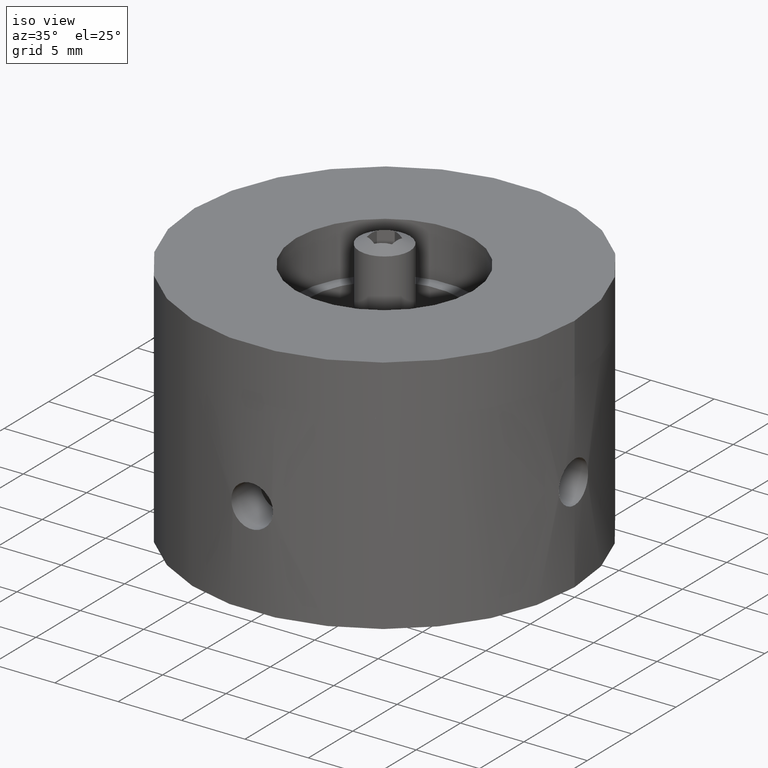
[diagram: clean part render]
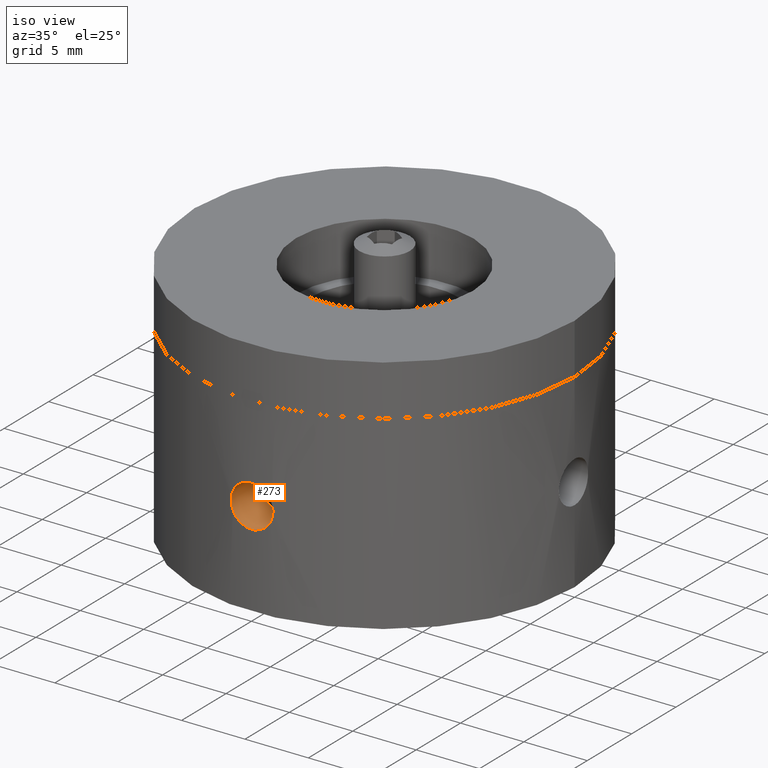
[diagram: same view with one face highlighted and labeled with its STEP entity id]
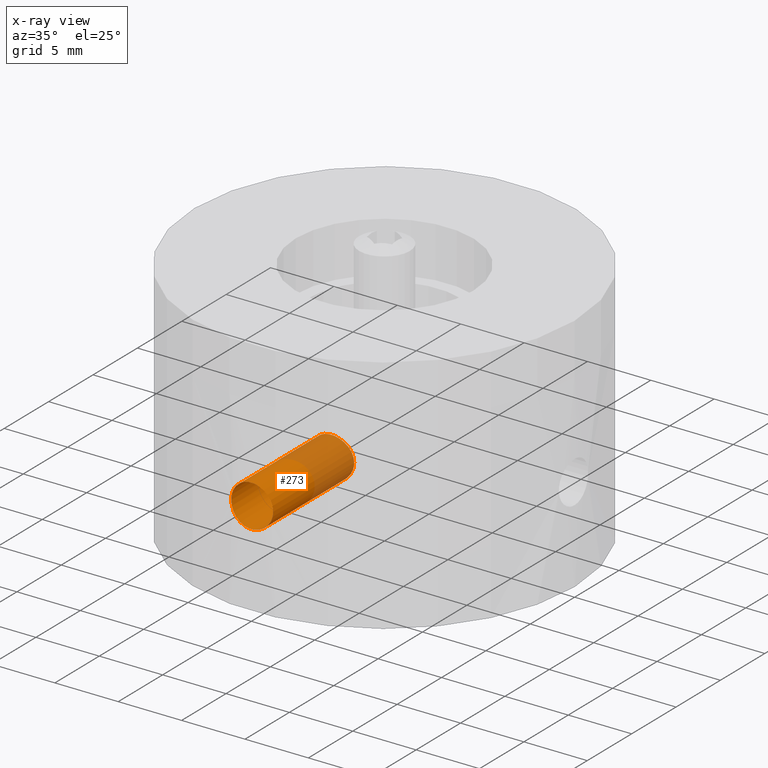
[diagram: x-ray of the same camera — body ghosted, the highlighted face saturated]
A machine part, iso view. The second image highlights one B-rep face of the part: STEP entity #273.
The next image is the same camera in x-ray: the body ghosted, the highlighted face saturated — about 38% of this face is hidden behind the body in this view.
In plain terms, the highlighted cylindrical surface (bore or boss wall) has radius 1.65 mm, axis along (-0, 1, -0).
Its self-contained STEP definition (entity closure, byte-faithful):
#273 = ADVANCED_FACE( '', ( #313, #314 ), #315, .F. );
#313 = FACE_OUTER_BOUND( '', #374, .T. );
#314 = FACE_OUTER_BOUND( '', #375, .T. );
#315 = CYLINDRICAL_SURFACE( '', #376, 1.65000000000000 );
#374 = EDGE_LOOP( '', ( #440 ) );
#375 = EDGE_LOOP( '', ( #441 ) );
#376 = AXIS2_PLACEMENT_3D( '', #442, #443, #444 );
#440 = ORIENTED_EDGE( '', *, *, #551, .T. );
#441 = ORIENTED_EDGE( '', *, *, #555, .F. );
#442 = CARTESIAN_POINT( '', ( 0.000000000000000, -12.0000000000000, -7.50000000000000 ) );
#443 = DIRECTION( '', ( -0.000000000000000, 1.00000000000000, -0.000000000000000 ) );
#444 = DIRECTION( '', ( 1.00000000000000, 0.000000000000000, 0.000000000000000 ) );
#551 = EDGE_CURVE( '', #585, #585, #586, .T. );
#555 = EDGE_CURVE( '', #593, #593, #594, .T. );
#585 = VERTEX_POINT( '', #645 );
#586 = B_SPLINE_CURVE_WITH_KNOTS( '', 3, ( #646, #647, #648, #649, #650, #651, #652, #653, #654, #655, #656, #657, #658, #659, #660, #661, #662, #663, #664, #665, #666, #667, #668, #669, #670, #671, #672, #673, #674, #675, #676, #677, #678, #679, #680, #681, #682, #683, #684, #685, #686, #687, #688, #689, #690, #691, #692, #693, #694, #695, #696, #697, #698, #699 ), .UNSPECIFIED., .T., .F., ( 2, 2, 2, 2, 2, 2, 2, 2, 2, 2, 2, 2, 2, 2, 2, 2, 2, 2, 2, 2, 2, 2, 2, 2, 2, 2, 2, 2, 2 ), ( -0.000645243045229336, 0.000000000000000, 0.000322621522614668, 0.000645243045229336, 0.000967864567844005, 0.00129048609045867, 0.00193572913568801, 0.00258097218091735, 0.00290359370353201, 0.00322621522614668, 0.00354883674876135, 0.00387145827137602, 0.00419407979399069, 0.00451670131660535, 0.00483932283922002, 0.00516194436183469, 0.00580718740706402, 0.00645243045229336, 0.00677505197490803, 0.00709767349752269, 0.00742029502013736, 0.00774291654275203, 0.00806553806536670, 0.00838815958798137, 0.00871078111059603, 0.00903340263321070, 0.00967864567844004, 0.0103238887236694, 0.0106465102462840 ), .UNSPECIFIED. );
#593 = VERTEX_POINT( '', #759 );
#594 = B_SPLINE_CURVE_WITH_KNOTS( '', 3, ( #760, #761, #762, #763, #764, #765, #766, #767, #768, #769, #770, #771, #772, #773, #774, #775, #776, #777, #778, #779, #780, #781, #782, #783, #784, #785, #786, #787, #788, #789, #790, #791, #792, #793, #794, #795, #796, #797, #798, #799, #800, #801, #802, #803, #804, #805, #806, #807, #808, #809, #810, #811, #812, #813 ), .UNSPECIFIED., .T., .F., ( 2, 2, 2, 2, 2, 2, 2, 2, 2, 2, 2, 2, 2, 2, 2, 2, 2, 2, 2, 2, 2, 2, 2, 2, 2, 2, 2, 2, 2 ), ( -0.000323935350065545, 0.000000000000000, 0.000323935350065543, 0.000647870700131086, 0.000971806050196629, 0.00129574140026217, 0.00194361210039326, 0.00259148280052434, 0.00291541815058989, 0.00323935350065543, 0.00388722420078652, 0.00421115955085206, 0.00453509490091760, 0.00485903025098314, 0.00518296560104869, 0.00583083630117977, 0.00615477165124532, 0.00647870700131086, 0.00680264235137640, 0.00712657770144195, 0.00745051305150749, 0.00777444840157303, 0.00809838375163858, 0.00842231910170412, 0.00907018980183521, 0.00971806050196629, 0.0100419958520318, 0.0103659312020974, 0.0106898665521629 ), .UNSPECIFIED. );
#645 = CARTESIAN_POINT( '', ( 1.65000000000000, -14.9089738077441, -7.50000000000000 ) );
#646 = CARTESIAN_POINT( '', ( 1.65000000000000, -14.9089738077441, -7.71819070415725 ) );
#647 = CARTESIAN_POINT( '', ( 1.65000000000000, -14.9089738077441, -7.39090464792137 ) );
#648 = CARTESIAN_POINT( '', ( 1.63928684178197, -14.9101704889318, -7.28364897918889 ) );
#649 = CARTESIAN_POINT( '', ( 1.59732615329414, -14.9147240845634, -7.07266140608641 ) );
#650 = CARTESIAN_POINT( '', ( 1.56556334465662, -14.9181347766517, -6.96782996341511 ) );
#651 = CARTESIAN_POINT( '', ( 1.48271649969033, -14.9265965840181, -6.76805374820467 ) );
#652 = CARTESIAN_POINT( '', ( 1.43203126078904, -14.9316074407352, -6.67331549730807 ) );
#653 = CARTESIAN_POINT( '', ( 1.31229737076662, -14.9426065298787, -6.49401967735593 ) );
#654 = CARTESIAN_POINT( '', ( 1.24265989885390, -14.9486325684795, -6.40919195513248 ) );
#655 = CARTESIAN_POINT( '', ( 1.01450024180300, -14.9664313189846, -6.18107903221962 ) );
#656 = CARTESIAN_POINT( '', ( 0.830547892981252, -14.9783064416020, -6.05817135265818 ) );
#657 = CARTESIAN_POINT( '', ( 0.433541208675946, -14.9950497058679, -5.89353752885075 ) );
#658 = CARTESIAN_POINT( '', ( 0.216298844694141, -14.9999869469486, -5.85011866412176 ) );
#659 = CARTESIAN_POINT( '', ( -0.106788754905531, -15.0000064853831, -5.84994104196257 ) );
#660 = CARTESIAN_POINT( '', ( -0.216192192657116, -14.9988155505170, -5.86066893428715 ) );
#661 = CARTESIAN_POINT( '', ( -0.427869468074369, -14.9942700622901, -5.90279208445898 ) );
#662 = CARTESIAN_POINT( '', ( -0.530762121592197, -14.9909404587848, -5.93395819817668 ) );
#663 = CARTESIAN_POINT( '', ( -0.730627897140900, -14.9825293974171, -6.01663280651939 ) );
#664 = CARTESIAN_POINT( '', ( -0.827144611714831, -14.9774445782397, -6.06826023390853 ) );
#665 = CARTESIAN_POINT( '', ( -1.00585537081090, -14.9665049118336, -6.18763498236680 ) );
#666 = CARTESIAN_POINT( '', ( -1.08920300456758, -14.9606018601566, -6.25581464364733 ) );
#667 = CARTESIAN_POINT( '', ( -1.24328230154476, -14.9485858970656, -6.40976630725929 ) );
#668 = CARTESIAN_POINT( '', ( -1.31149950016194, -14.9426761324245, -6.49301798372322 ) );
#669 = CARTESIAN_POINT( '', ( -1.43101258109833, -14.9317046558721, -6.67159990779325 ) );
#670 = CARTESIAN_POINT( '', ( -1.48272402148114, -14.9265958363253, -6.76806861106908 ) );
#671 = CARTESIAN_POINT( '', ( -1.56557048971486, -14.9181340262989, -6.96785046865236 ) );
#672 = CARTESIAN_POINT( '', ( -1.59681990520082, -14.9147785383513, -7.07069453413408 ) );
#673 = CARTESIAN_POINT( '', ( -1.63912314971133, -14.9101887297844, -7.28225636002788 ) );
#674 = CARTESIAN_POINT( '', ( -1.64995997310042, -14.9089782375849, -7.39167101728523 ) );
#675 = CARTESIAN_POINT( '', ( -1.65007971398281, -14.9089649856706, -7.71482379481936 ) );
#676 = CARTESIAN_POINT( '', ( -1.60686687133185, -14.9139129584025, -7.93206616723543 ) );
#677 = CARTESIAN_POINT( '', ( -1.44254524932349, -14.9307027321772, -8.32931629593755 ) );
#678 = CARTESIAN_POINT( '', ( -1.31980835899336, -14.9426014862893, -8.51335072638096 ) );
#679 = CARTESIAN_POINT( '', ( -1.09186535066610, -14.9604023467501, -8.74173205877765 ) );
#680 = CARTESIAN_POINT( '', ( -1.00708575851452, -14.9664235129812, -8.81144746369314 ) );
#681 = CARTESIAN_POINT( '', ( -0.827928177747642, -14.9774026262036, -8.93131097512783 ) );
#682 = CARTESIAN_POINT( '', ( -0.733250546335793, -14.9824006355741, -8.98207076984429 ) );
#683 = CARTESIAN_POINT( '', ( -0.533577180011314, -14.9908398884627, -9.06508323213169 ) );
#684 = CARTESIAN_POINT( '', ( -0.428756658834457, -14.9942421080848, -9.09694561597872 ) );
#685 = CARTESIAN_POINT( '', ( -0.217820659634048, -14.9987893787663, -9.13909174030166 ) );
#686 = CARTESIAN_POINT( '', ( -0.110597130466666, -14.9999887080203, -9.14989734559534 ) );
#687 = CARTESIAN_POINT( '', ( 0.107512620617929, -15.0000111334096, -9.15010121285873 ) );
#688 = CARTESIAN_POINT( '', ( 0.214877261540442, -14.9988321430700, -9.13948064143589 ) );
#689 = CARTESIAN_POINT( '', ( 0.425901546351155, -14.9943237848972, -9.09770988730303 ) );
#690 = CARTESIAN_POINT( '', ( 0.530732167608159, -14.9909416142419, -9.06605298448722 ) );
#691 = CARTESIAN_POINT( '', ( 0.730626386675595, -14.9825295660792, -8.98336902591660 ) );
#692 = CARTESIAN_POINT( '', ( 0.825415481249328, -14.9775420046777, -8.93276252001027 ) );
#693 = CARTESIAN_POINT( '', ( 1.00480515136419, -14.9665774920775, -8.81319677246946 ) );
#694 = CARTESIAN_POINT( '', ( 1.08970190551822, -14.9605607430210, -8.74363065681718 ) );
#695 = CARTESIAN_POINT( '', ( 1.31803293623761, -14.9427608270037, -8.51565692674996 ) );
#696 = CARTESIAN_POINT( '', ( 1.44109376200985, -14.9308447400876, -8.33182209063996 ) );
#697 = CARTESIAN_POINT( '', ( 1.60607794737681, -14.9139997824345, -7.93496304248781 ) );
#698 = CARTESIAN_POINT( '', ( 1.65000000000000, -14.9089738077441, -7.71819070415725 ) );
#699 = CARTESIAN_POINT( '', ( 1.65000000000000, -14.9089738077441, -7.39090464792137 ) );
#759 = CARTESIAN_POINT( '', ( 1.65000000000000, -5.76866535690882, -7.50000000000000 ) );
#760 = CARTESIAN_POINT( '', ( 1.65000000000000, -5.76866535690882, -7.60957687172956 ) );
#761 = CARTESIAN_POINT( '', ( 1.65000000000000, -5.76866535690882, -7.39042312827044 ) );
#762 = CARTESIAN_POINT( '', ( 1.63919389393257, -5.77178692553713, -7.28278867713167 ) );
#763 = CARTESIAN_POINT( '', ( 1.59695842463832, -5.78361519515985, -7.07120964252361 ) );
#764 = CARTESIAN_POINT( '', ( 1.56498242243479, -5.79246668721539, -6.96614154215468 ) );
#765 = CARTESIAN_POINT( '', ( 1.48199675075463, -5.81425196700166, -6.76661029029883 ) );
#766 = CARTESIAN_POINT( '', ( 1.43129370083876, -5.82710716480738, -6.67205947712033 ) );
#767 = CARTESIAN_POINT( '', ( 1.31159239112937, -5.85521177821450, -6.49311740157130 ) );
#768 = CARTESIAN_POINT( '', ( 1.24230218743372, -5.87048905045125, -6.40883309233159 ) );
#769 = CARTESIAN_POINT( '', ( 1.01518734328448, -5.91550676810682, -6.18176844249272 ) );
#770 = CARTESIAN_POINT( '', ( 0.831967661642739, -5.94538560599344, -6.05900352545720 ) );
#771 = CARTESIAN_POINT( '', ( 0.435298811500737, -5.98751159820833, -5.89402491477292 ) );
#772 = CARTESIAN_POINT( '', ( 0.217458792416847, -5.99996194295814, -5.85013838926912 ) );
#773 = CARTESIAN_POINT( '', ( -0.107150502404167, -6.00001889002617, -5.84993130898279 ) );
#774 = CARTESIAN_POINT( '', ( -0.217085237680211, -5.99701162357613, -5.86077335270232 ) );
#775 = CARTESIAN_POINT( '', ( -0.429139169098669, -5.98557549340673, -5.90311879741329 ) );
#776 = CARTESIAN_POINT( '', ( -0.532270186936321, -5.97719397143362, -5.93444404429814 ) );
#777 = CARTESIAN_POINT( '', ( -0.832965771441648, -5.94531793260722, -6.05924463112375 ) );
#778 = CARTESIAN_POINT( '', ( -1.01424259936861, -5.91569984907431, -6.18076743341767 ) );
#779 = CARTESIAN_POINT( '', ( -1.24309870350945, -5.87032825334419, -6.40965772937590 ) );
#780 = CARTESIAN_POINT( '', ( -1.31099505183364, -5.85534412466293, -6.49237842394233 ) );
#781 = CARTESIAN_POINT( '', ( -1.43043473203242, -5.82731664847143, -6.67062327988749 ) );
#782 = CARTESIAN_POINT( '', ( -1.48228092935192, -5.81417841894113, -6.76723227550747 ) );
#783 = CARTESIAN_POINT( '', ( -1.56497552760715, -5.79246743959704, -6.96618646554336 ) );
#784 = CARTESIAN_POINT( '', ( -1.59641696368705, -5.78376555364899, -7.06904739489962 ) );
#785 = CARTESIAN_POINT( '', ( -1.63909713664893, -5.77181528447971, -7.28176195010981 ) );
#786 = CARTESIAN_POINT( '', ( -1.64995316210289, -5.76867875385901, -7.39129225509596 ) );
#787 = CARTESIAN_POINT( '', ( -1.65009321330336, -5.76863869529379, -7.71527570961920 ) );
#788 = CARTESIAN_POINT( '', ( -1.60655563384624, -5.78154398363783, -7.93337702513394 ) );
#789 = CARTESIAN_POINT( '', ( -1.48283844117316, -5.81403544168976, -8.23162443918887 ) );
#790 = CARTESIAN_POINT( '', ( -1.43115085401429, -5.82714196640622, -8.32817870501136 ) );
#791 = CARTESIAN_POINT( '', ( -1.31150132285195, -5.85523189495992, -8.50699404890879 ) );
#792 = CARTESIAN_POINT( '', ( -1.24360763407258, -5.87021724312962, -8.58973498337169 ) );
#793 = CARTESIAN_POINT( '', ( -1.09151774345873, -5.90038977058081, -8.74204319458804 ) );
#794 = CARTESIAN_POINT( '', ( -1.00730510853515, -5.91552608511525, -8.81122609574331 ) );
#795 = CARTESIAN_POINT( '', ( -0.829289174767602, -5.94309615520170, -8.93047436903027 ) );
#796 = CARTESIAN_POINT( '', ( -0.734694361199138, -5.95570704049959, -8.98141285141227 ) );
#797 = CARTESIAN_POINT( '', ( -0.533617604271764, -5.97707908673170, -9.06512366703673 ) );
#798 = CARTESIAN_POINT( '', ( -0.430116319728839, -5.98549913435801, -9.09659521184885 ) );
#799 = CARTESIAN_POINT( '', ( -0.218766488052849, -5.99694431853445, -9.13898064134412 ) );
#800 = CARTESIAN_POINT( '', ( -0.109464418864117, -5.99998786257991, -9.14995586392361 ) );
#801 = CARTESIAN_POINT( '', ( 0.108129790222900, -6.00001206320203, -9.15004386619250 ) );
#802 = CARTESIAN_POINT( '', ( 0.215587923675139, -5.99706770970419, -9.13943097765665 ) );
#803 = CARTESIAN_POINT( '', ( 0.427878087466100, -5.98566784994603, -9.09722647911971 ) );
#804 = CARTESIAN_POINT( '', ( 0.533211442925509, -5.97709726532556, -9.06517925092069 ) );
#805 = CARTESIAN_POINT( '', ( 0.831630807606225, -5.94545329205068, -8.94128148581658 ) );
#806 = CARTESIAN_POINT( '', ( 1.01475074386130, -5.91558171370074, -8.81855559694987 ) );
#807 = CARTESIAN_POINT( '', ( 1.31757760919285, -5.85557984553120, -8.51602026464463 ) );
#808 = CARTESIAN_POINT( '', ( 1.44031263129256, -5.82518892771716, -8.33327349295369 ) );
#809 = CARTESIAN_POINT( '', ( 1.56449956372118, -5.79259637338742, -8.03518913721813 ) );
#810 = CARTESIAN_POINT( '', ( 1.59668527874201, -5.78369114005916, -7.92992092478359 ) );
#811 = CARTESIAN_POINT( '', ( 1.63919009974680, -5.77178853561376, -7.71746654411732 ) );
#812 = CARTESIAN_POINT( '', ( 1.65000000000000, -5.76866535690882, -7.60957687172956 ) );
#813 = CARTESIAN_POINT( '', ( 1.65000000000000, -5.76866535690882, -7.39042312827044 ) );